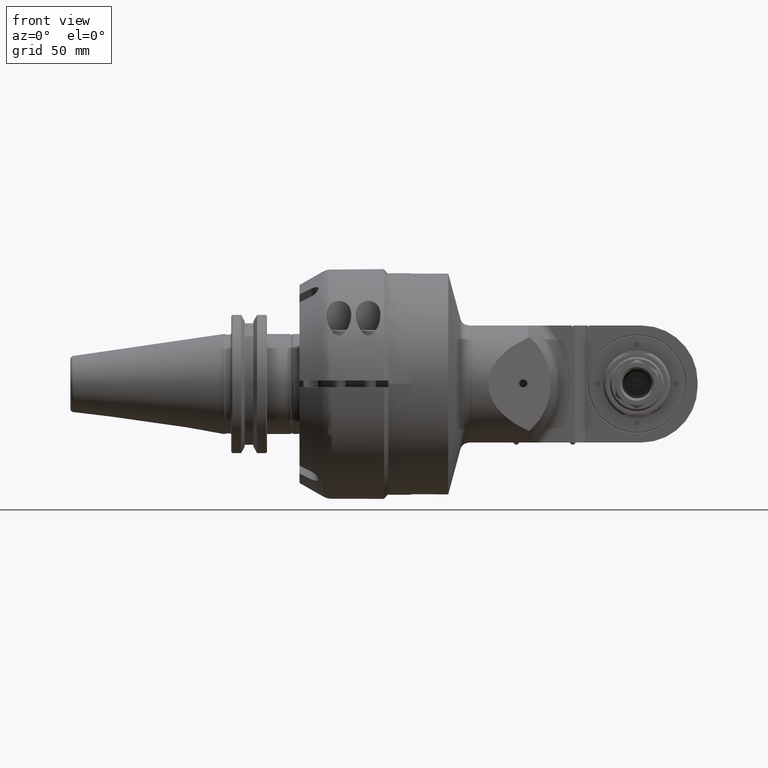
[diagram: clean part render]
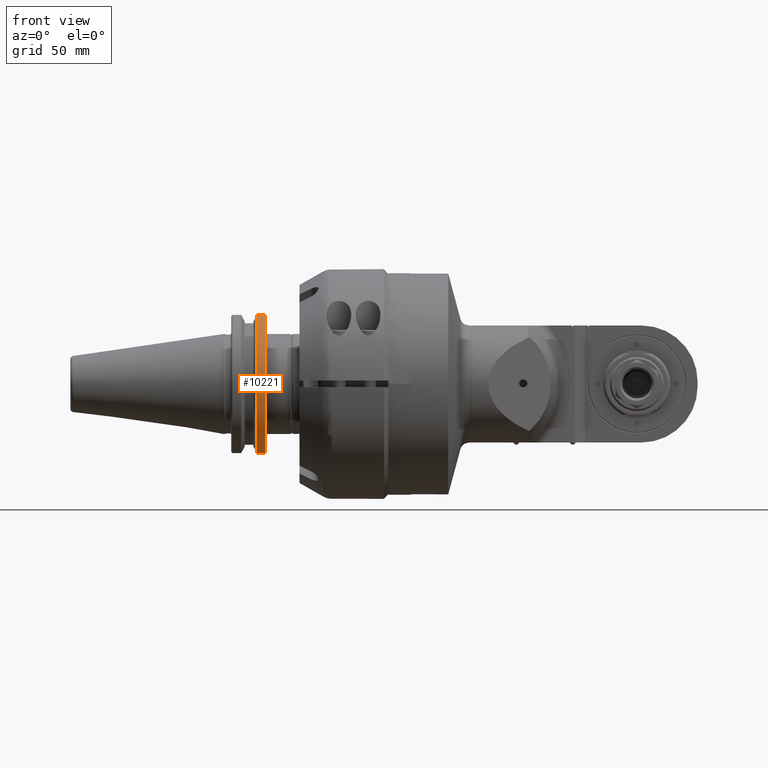
[diagram: same view with one face highlighted and labeled with its STEP entity id]
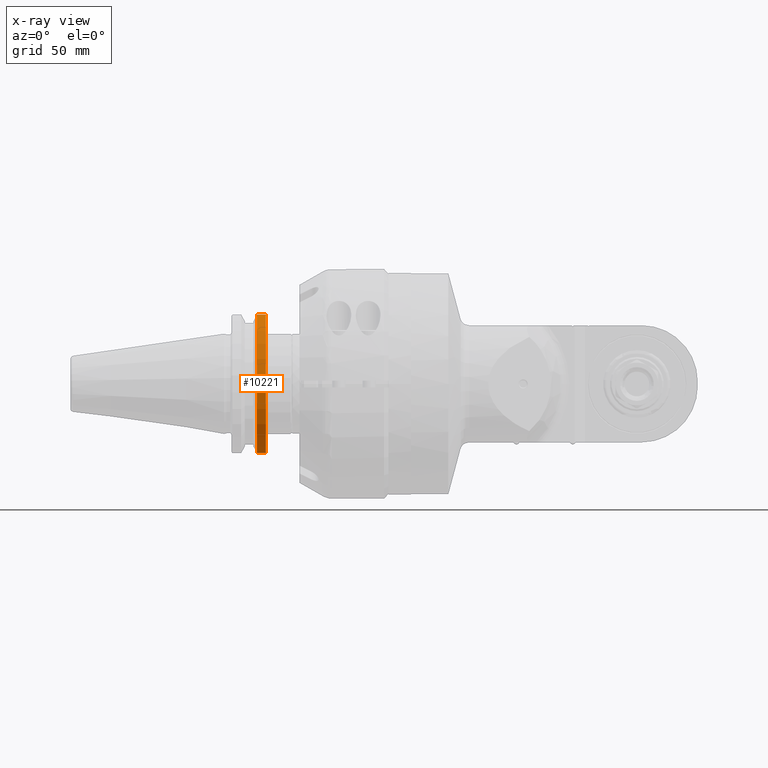
[diagram: x-ray of the same camera — body ghosted, the highlighted face saturated]
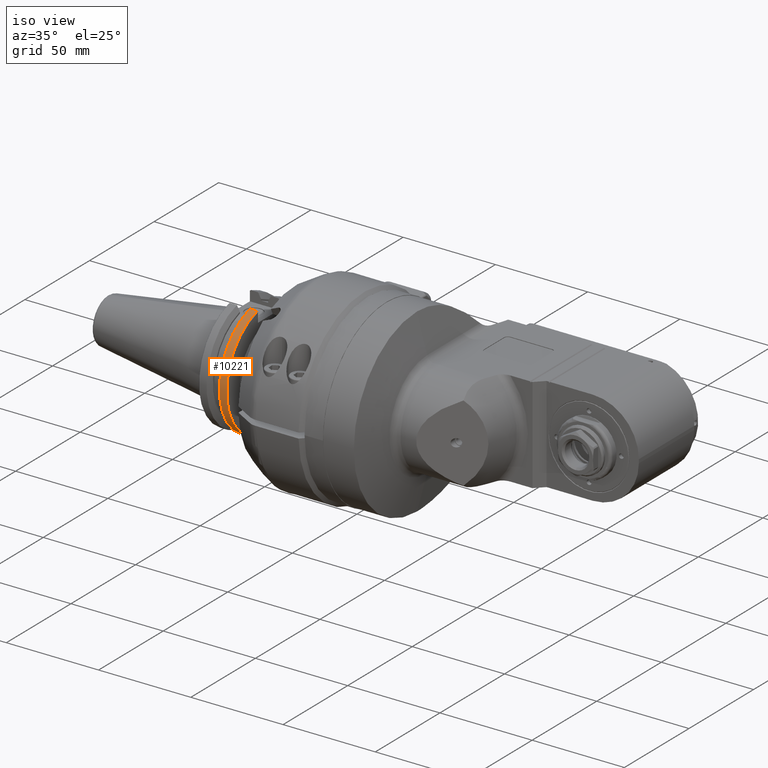
[diagram: same view with one face highlighted and labeled with its STEP entity id]
A machine part, front view. The second image highlights one B-rep face of the part: STEP entity #10221.
The next image is the same camera in x-ray: the body ghosted, the highlighted face saturated — about 0% of this face is hidden behind the body in this view.
A second angle (iso view) of the same face is appended — the face is thin or edge-on in the first view.
In plain terms, the highlighted cylindrical surface (partial cylindrical patch) has radius 31.75 mm, axis along (1, 0, -0).
Its self-contained STEP definition (entity closure, byte-faithful):
#1516=FACE_OUTER_BOUND('',#2164,.T.);
#2164=EDGE_LOOP('',(#8276,#8277,#8278,#8279));
#2906=LINE('',#46594,#3596);
#2914=LINE('',#46678,#3604);
#3596=VECTOR('',#13217,3.88932990993402);
#3604=VECTOR('',#13233,3.88932990948002);
#4168=CIRCLE('',#11257,31.75);
#4169=CIRCLE('',#11259,31.75);
#4924=VERTEX_POINT('',#46582);
#4925=VERTEX_POINT('',#46593);
#4936=VERTEX_POINT('',#46666);
#4937=VERTEX_POINT('',#46677);
#6119=EDGE_CURVE('',#4925,#4924,#2906,.T.);
#6135=EDGE_CURVE('',#4937,#4936,#2914,.T.);
#6137=EDGE_CURVE('',#4937,#4924,#4168,.T.);
#6138=EDGE_CURVE('',#4925,#4936,#4169,.T.);
#8276=ORIENTED_EDGE('',*,*,#6138,.F.);
#8277=ORIENTED_EDGE('',*,*,#6119,.T.);
#8278=ORIENTED_EDGE('',*,*,#6137,.F.);
#8279=ORIENTED_EDGE('',*,*,#6135,.T.);
#9837=CYLINDRICAL_SURFACE('',#11258,31.75);
#10221=ADVANCED_FACE('',(#1516),#9837,.T.);
#11257=AXIS2_PLACEMENT_3D('',#46690,#13236,#13237);
#11258=AXIS2_PLACEMENT_3D('',#46691,#13238,#13239);
#11259=AXIS2_PLACEMENT_3D('',#46692,#13240,#13241);
#13217=DIRECTION('',(0.999999999999995,-2.55212709311899E-8,-9.55707103829795E-8));
#13233=DIRECTION('',(-0.999999999999995,-2.55237272048599E-8,9.55799051954895E-8));
#13236=DIRECTION('center_axis',(1.,0.,0.));
#13237=DIRECTION('ref_axis',(0.,-0.96614491666623,-0.258000000000008));
#13238=DIRECTION('center_axis',(-1.,0.,0.));
#13239=DIRECTION('ref_axis',(0.,1.,0.));
#13240=DIRECTION('center_axis',(-1.,0.,0.));
#13241=DIRECTION('ref_axis',(0.,0.96614491666623,-0.258000000000008));
#46582=CARTESIAN_POINT('',(27.3393332126178,30.6751009774094,-8.19150055406654));
#46593=CARTESIAN_POINT('',(23.45,30.67510110415,-8.1915));
#46594=CARTESIAN_POINT('',(23.45,30.67510110415,-8.1915));
#46666=CARTESIAN_POINT('',(23.45,-30.67510110415,-8.1915));
#46677=CARTESIAN_POINT('',(27.3393332120371,-30.6751009778011,-8.19150055396294));
#46678=CARTESIAN_POINT('',(27.33932990948,-30.67510100488,-8.191500371742));
#46690=CARTESIAN_POINT('Origin',(27.33933323092,0.,0.));
#46691=CARTESIAN_POINT('Origin',(30.8875,0.,0.));
#46692=CARTESIAN_POINT('Origin',(23.45,0.,0.));